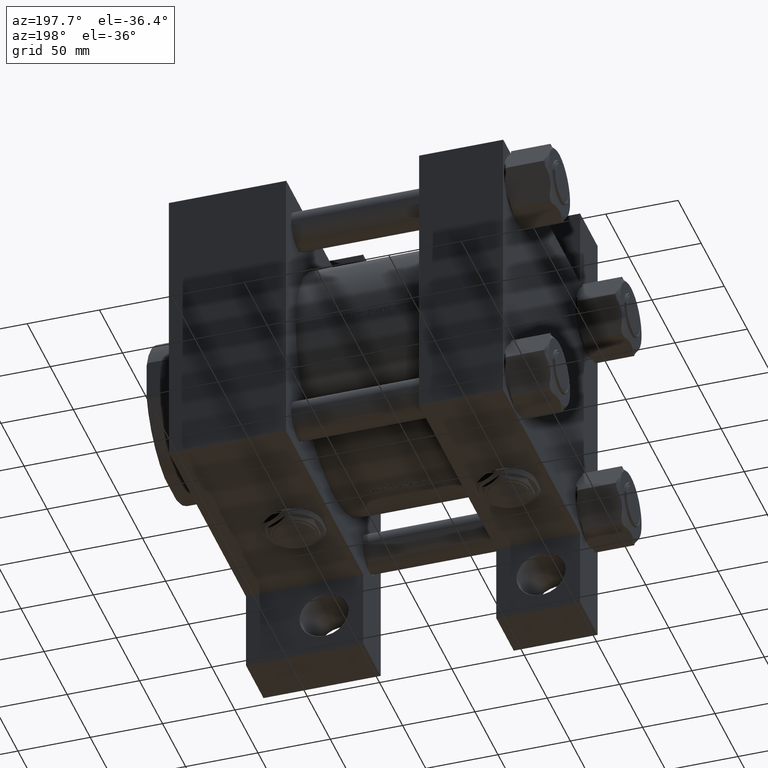
[diagram: clean part render]
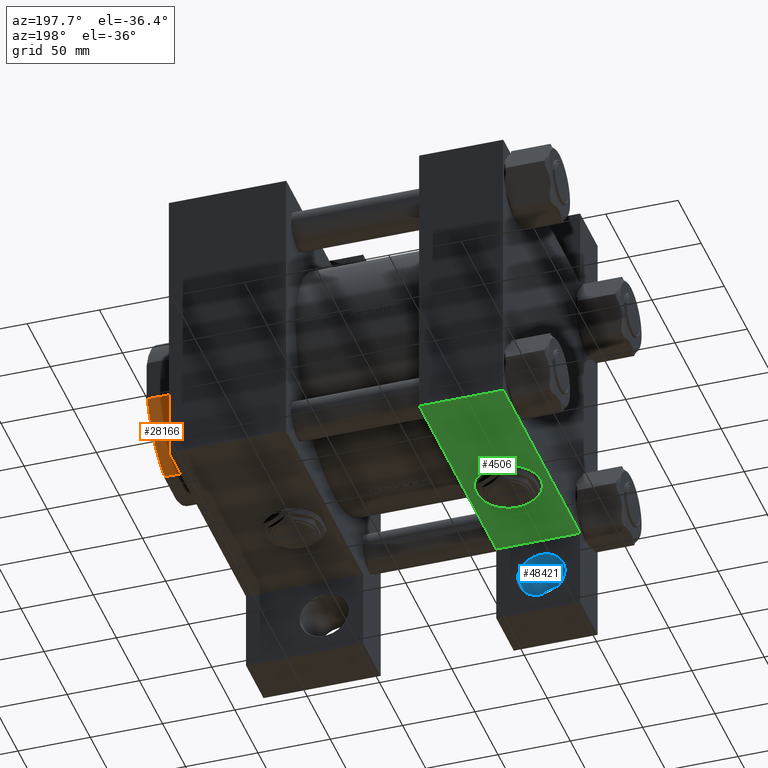
[diagram: same view with three faces highlighted in distinct colors, each labeled with its STEP entity id]
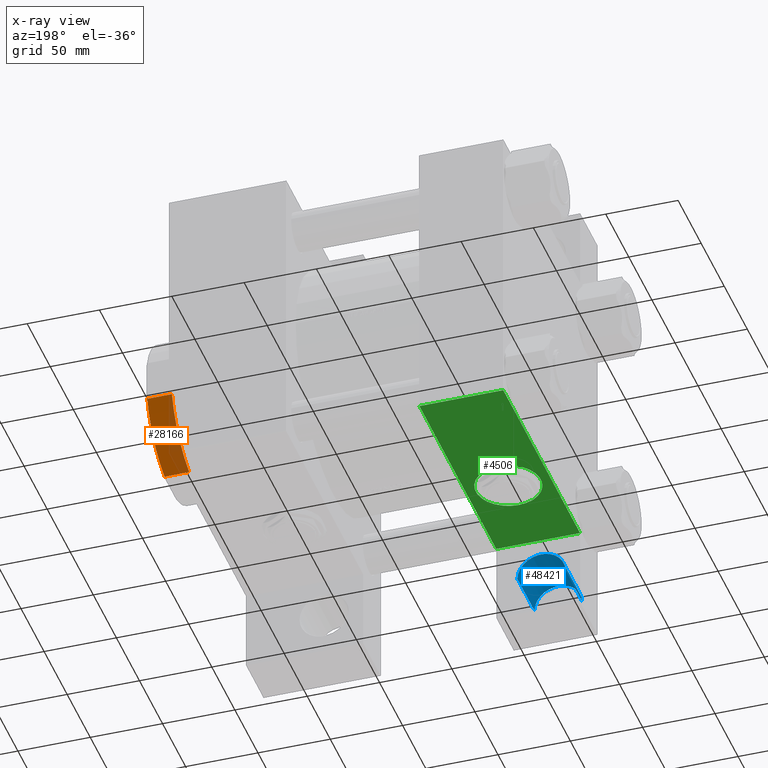
[diagram: x-ray of the same camera — body ghosted, the three highlighted faces saturated]
A machine part, auxiliary view with three faces highlighted in distinct colors.
The next image is the same camera in x-ray (body ghosted, the three faces saturated) — at least one of them is partly hidden behind the body in this view.
Their STEP definitions:

[orange] entity #28166 — the highlighted cylindrical surface (partial cylindrical patch) has radius 54 mm, axis along (1, 0, 0).
#1068 = FACE_OUTER_BOUND ( 'NONE', #41718, .T. ) ;
#3199 = LINE ( 'NONE', #15602, #40118 ) ;
#3729 = ORIENTED_EDGE ( 'NONE', *, *, #34948, .F. ) ;
#4624 = DIRECTION ( 'NONE',  ( -0.000000000000000000, -0.000000000000000000, 1.000000000000000000 ) ) ;
#5233 = CARTESIAN_POINT ( 'NONE',  ( 0.000000000000000000, 0.000000000000000000, 187.5000000000000000 ) ) ;
#8794 = VERTEX_POINT ( 'NONE', #12849 ) ;
#10292 = DIRECTION ( 'NONE',  ( -0.000000000000000000, -0.000000000000000000, -1.000000000000000000 ) ) ;
#12849 = CARTESIAN_POINT ( 'NONE',  ( -52.00000000000001421, 14.56021977856099170, 187.5000000000000000 ) ) ;
#14892 = VERTEX_POINT ( 'NONE', #29528 ) ;
#15602 = CARTESIAN_POINT ( 'NONE',  ( -14.56021977856099348, 52.00000000000001421, -0.001000000000001000089 ) ) ;
#16395 = DIRECTION ( 'NONE',  ( -1.000000000000000000, -1.776356839400250465E-15, 0.000000000000000000 ) ) ;
#16510 = CYLINDRICAL_SURFACE ( 'NONE', #44851, 54.00000000000000000 ) ;
#17615 = VERTEX_POINT ( 'NONE', #28942 ) ;
#18624 = LINE ( 'NONE', #45518, #28533 ) ;
#19092 = EDGE_CURVE ( 'NONE', #49597, #14892, #26081, .T. ) ;
#20517 = EDGE_CURVE ( 'NONE', #8794, #49597, #18624, .T. ) ;
#24573 = CIRCLE ( 'NONE', #39968, 54.00000000000000000 ) ;
#24599 = ORIENTED_EDGE ( 'NONE', *, *, #26569, .T. ) ;
#26081 = CIRCLE ( 'NONE', #47946, 54.00000000000000000 ) ;
#26569 = EDGE_CURVE ( 'NONE', #17615, #8794, #24573, .T. ) ;
#28166 = ADVANCED_FACE ( 'NONE', ( #1068 ), #16510, .T. ) ;
#28533 = VECTOR ( 'NONE', #45256, 1000.000000000000000 ) ;
#28942 = CARTESIAN_POINT ( 'NONE',  ( -14.56021977856098992, 52.00000000000001421, 187.5000000000000000 ) ) ;
#29528 = CARTESIAN_POINT ( 'NONE',  ( -14.56021977856099348, 52.00000000000001421, 204.4999999999998863 ) ) ;
#31382 = DIRECTION ( 'NONE',  ( -0.000000000000000000, -0.000000000000000000, 1.000000000000000000 ) ) ;
#33902 = DIRECTION ( 'NONE',  ( 1.000000000000000000, -8.881784197001252323E-16, 0.000000000000000000 ) ) ;
#34948 = EDGE_CURVE ( 'NONE', #17615, #14892, #3199, .T. ) ;
#35074 = CARTESIAN_POINT ( 'NONE',  ( 0.000000000000000000, 0.000000000000000000, -0.001000000000001000089 ) ) ;
#36439 = CARTESIAN_POINT ( 'NONE',  ( -52.00000000000001421, 14.56021977856099348, 204.4999999999998863 ) ) ;
#38926 = DIRECTION ( 'NONE',  ( -0.000000000000000000, -0.000000000000000000, 1.000000000000000000 ) ) ;
#39968 = AXIS2_PLACEMENT_3D ( 'NONE', #5233, #31382, #16395 ) ;
#40118 = VECTOR ( 'NONE', #38926, 1000.000000000000000 ) ;
#40999 = CARTESIAN_POINT ( 'NONE',  ( 0.000000000000000000, 0.000000000000000000, 204.4999999999999432 ) ) ;
#41718 = EDGE_LOOP ( 'NONE', ( #46091, #47823, #3729, #24599 ) ) ;
#44851 = AXIS2_PLACEMENT_3D ( 'NONE', #35074, #4624, #46491 ) ;
#45256 = DIRECTION ( 'NONE',  ( -0.000000000000000000, -0.000000000000000000, 1.000000000000000000 ) ) ;
#45518 = CARTESIAN_POINT ( 'NONE',  ( -52.00000000000001421, 14.56021977856099348, -0.001000000000001000089 ) ) ;
#46091 = ORIENTED_EDGE ( 'NONE', *, *, #20517, .T. ) ;
#46491 = DIRECTION ( 'NONE',  ( 1.000000000000000000, 0.000000000000000000, 0.000000000000000000 ) ) ;
#47823 = ORIENTED_EDGE ( 'NONE', *, *, #19092, .T. ) ;
#47946 = AXIS2_PLACEMENT_3D ( 'NONE', #40999, #10292, #33902 ) ;
#49597 = VERTEX_POINT ( 'NONE', #36439 ) ;

[blue] entity #48421 — the highlighted cylindrical surface (edge-blend (fillet) strip) has radius 16.4995 mm, axis along (0, 1, 0).
#345 = CARTESIAN_POINT ( 'NONE',  ( 10.50049999999998818, 129.9999999999999716, -149.1676333447497598 ) ) ;
#3825 = DIRECTION ( 'NONE',  ( -0.000000000000000000, -0.000000000000000000, -1.000000000000000000 ) ) ;
#4013 = AXIS2_PLACEMENT_3D ( 'NONE', #18521, #3825, #11424 ) ;
#4180 = EDGE_CURVE ( 'NONE', #8031, #5574, #23407, .T. ) ;
#4406 = CARTESIAN_POINT ( 'NONE',  ( 43.49949999999999761, 129.9999999999999716, -101.9999999999999574 ) ) ;
#5574 = VERTEX_POINT ( 'NONE', #17607 ) ;
#6864 = CARTESIAN_POINT ( 'NONE',  ( 26.99999999999999289, 129.9999999999999716, -149.1676333447497598 ) ) ;
#7365 = AXIS2_PLACEMENT_3D ( 'NONE', #47191, #20279, #46445 ) ;
#7833 = ORIENTED_EDGE ( 'NONE', *, *, #8304, .T. ) ;
#8031 = VERTEX_POINT ( 'NONE', #42376 ) ;
#8304 = EDGE_CURVE ( 'NONE', #5574, #36723, #36503, .T. ) ;
#9311 = ORIENTED_EDGE ( 'NONE', *, *, #12792, .T. ) ;
#10050 = DIRECTION ( 'NONE',  ( -0.000000000000000000, -0.000000000000000000, 1.000000000000000000 ) ) ;
#11235 = DIRECTION ( 'NONE',  ( -0.000000000000000000, -0.000000000000000000, 1.000000000000000000 ) ) ;
#11424 = DIRECTION ( 'NONE',  ( -1.000000000000000000, 0.000000000000000000, 0.000000000000000000 ) ) ;
#12792 = EDGE_CURVE ( 'NONE', #19616, #8031, #29920, .T. ) ;
#17607 = CARTESIAN_POINT ( 'NONE',  ( 10.50049999999998818, 129.9999999999999716, -65.00000000000014211 ) ) ;
#18170 = LINE ( 'NONE', #25293, #34486 ) ;
#18521 = CARTESIAN_POINT ( 'NONE',  ( 26.99999999999999289, 129.9999999999999716, -101.9999999999999574 ) ) ;
#18783 = FACE_OUTER_BOUND ( 'NONE', #19643, .T. ) ;
#19616 = VERTEX_POINT ( 'NONE', #4406 ) ;
#19643 = EDGE_LOOP ( 'NONE', ( #9311, #33158, #7833, #21485 ) ) ;
#20279 = DIRECTION ( 'NONE',  ( 0.000000000000000000, 0.000000000000000000, 1.000000000000000000 ) ) ;
#20779 = CARTESIAN_POINT ( 'NONE',  ( 43.49949999999999761, 129.9999999999999716, -65.00000000000014211 ) ) ;
#21485 = ORIENTED_EDGE ( 'NONE', *, *, #31261, .F. ) ;
#23407 = LINE ( 'NONE', #345, #38890 ) ;
#25293 = CARTESIAN_POINT ( 'NONE',  ( 43.49949999999999761, 129.9999999999999716, -149.1676333447497598 ) ) ;
#25885 = CYLINDRICAL_SURFACE ( 'NONE', #33982, 16.49950000000000472 ) ;
#29920 = CIRCLE ( 'NONE', #4013, 16.49950000000000472 ) ;
#31261 = EDGE_CURVE ( 'NONE', #19616, #36723, #18170, .T. ) ;
#33158 = ORIENTED_EDGE ( 'NONE', *, *, #4180, .T. ) ;
#33982 = AXIS2_PLACEMENT_3D ( 'NONE', #6864, #49226, #41356 ) ;
#34486 = VECTOR ( 'NONE', #10050, 1000.000000000000000 ) ;
#36503 = CIRCLE ( 'NONE', #7365, 16.49950000000000472 ) ;
#36723 = VERTEX_POINT ( 'NONE', #20779 ) ;
#38890 = VECTOR ( 'NONE', #11235, 1000.000000000000000 ) ;
#41356 = DIRECTION ( 'NONE',  ( 1.000000000000000000, 0.000000000000000000, 0.000000000000000000 ) ) ;
#42376 = CARTESIAN_POINT ( 'NONE',  ( 10.50049999999998818, 129.9999999999999716, -101.9999999999999574 ) ) ;
#46445 = DIRECTION ( 'NONE',  ( -1.000000000000000000, 0.000000000000000000, 0.000000000000000000 ) ) ;
#47191 = CARTESIAN_POINT ( 'NONE',  ( 26.99999999999999289, 129.9999999999999716, -65.00000000000014211 ) ) ;
#48421 = ADVANCED_FACE ( 'NONE', ( #18783 ), #25885, .F. ) ;
#49226 = DIRECTION ( 'NONE',  ( -0.000000000000000000, -0.000000000000000000, 1.000000000000000000 ) ) ;

[green] entity #4506 — the highlighted planar face has unit normal (0, 0, -1).
#2029 = ORIENTED_EDGE ( 'NONE', *, *, #25108, .F. ) ;
#4064 = EDGE_CURVE ( 'NONE', #25290, #36278, #22163, .T. ) ;
#4506 = ADVANCED_FACE ( 'NONE', ( #4510, #12369 ), #5747, .T. ) ;
#4510 = FACE_OUTER_BOUND ( 'NONE', #18030, .T. ) ;
#5163 = CARTESIAN_POINT ( 'NONE',  ( 29.00000000000000000, 102.5000000000000284, 0.000000000000000000 ) ) ;
#5747 = PLANE ( 'NONE',  #15476 ) ;
#6111 = CARTESIAN_POINT ( 'NONE',  ( 29.00000000000000000, 102.5000000000000284, 0.000000000000000000 ) ) ;
#6146 = CARTESIAN_POINT ( 'NONE',  ( 0.000000000000000000, 102.5000000000000284, 102.5000000000000284 ) ) ;
#7185 = DIRECTION ( 'NONE',  ( 1.000000000000000000, -2.392722035830078479E-16, 0.000000000000000000 ) ) ;
#7391 = ORIENTED_EDGE ( 'NONE', *, *, #28081, .T. ) ;
#8198 = CARTESIAN_POINT ( 'NONE',  ( 58.00000000000002842, 102.5000000000000000, -64.50000000000002842 ) ) ;
#9396 = DIRECTION ( 'NONE',  ( 0.000000000000000000, 0.000000000000000000, 1.000000000000000000 ) ) ;
#9434 = DIRECTION ( 'NONE',  ( 0.000000000000000000, 0.000000000000000000, -1.000000000000000000 ) ) ;
#10009 = VECTOR ( 'NONE', #15277, 1000.000000000000000 ) ;
#10839 = DIRECTION ( 'NONE',  ( 1.000000000000000000, 0.000000000000000000, 0.000000000000000000 ) ) ;
#11645 = EDGE_CURVE ( 'NONE', #48414, #24021, #38775, .T. ) ;
#12369 = FACE_BOUND ( 'NONE', #45355, .T. ) ;
#15277 = DIRECTION ( 'NONE',  ( 0.000000000000000000, 0.000000000000000000, -1.000000000000000000 ) ) ;
#15476 = AXIS2_PLACEMENT_3D ( 'NONE', #40746, #36932, #24764 ) ;
#17619 = CARTESIAN_POINT ( 'NONE',  ( 29.00000000000000355, 102.5000000000000284, -22.50000000000000711 ) ) ;
#18020 = CARTESIAN_POINT ( 'NONE',  ( 29.00000000000000000, 102.5000000000000284, 22.50000000000000711 ) ) ;
#18030 = EDGE_LOOP ( 'NONE', ( #38267, #2029, #44566, #7391 ) ) ;
#19087 = CARTESIAN_POINT ( 'NONE',  ( 58.00000000000000000, 102.5000000000000284, 102.5000000000000284 ) ) ;
#19711 = LINE ( 'NONE', #26565, #20884 ) ;
#20884 = VECTOR ( 'NONE', #10839, 1000.000000000000000 ) ;
#21909 = CARTESIAN_POINT ( 'NONE',  ( 2.265596578422603081E-14, 102.5000000000000142, -64.50000000000002842 ) ) ;
#22130 = VECTOR ( 'NONE', #9434, 1000.000000000000000 ) ;
#22147 = LINE ( 'NONE', #19087, #10009 ) ;
#22163 = LINE ( 'NONE', #21909, #32422 ) ;
#22580 = AXIS2_PLACEMENT_3D ( 'NONE', #6111, #44150, #9396 ) ;
#24021 = VERTEX_POINT ( 'NONE', #17619 ) ;
#24764 = DIRECTION ( 'NONE',  ( 0.000000000000000000, -0.000000000000000000, 1.000000000000000000 ) ) ;
#24815 = AXIS2_PLACEMENT_3D ( 'NONE', #5163, #40652, #32050 ) ;
#25108 = EDGE_CURVE ( 'NONE', #27308, #25290, #36333, .T. ) ;
#25290 = VERTEX_POINT ( 'NONE', #46971 ) ;
#25616 = CIRCLE ( 'NONE', #24815, 22.50000000000000711 ) ;
#26565 = CARTESIAN_POINT ( 'NONE',  ( 58.00000000000000000, 102.5000000000000284, 102.0000000000000142 ) ) ;
#27308 = VERTEX_POINT ( 'NONE', #35985 ) ;
#28081 = EDGE_CURVE ( 'NONE', #37321, #36278, #22147, .T. ) ;
#31067 = CARTESIAN_POINT ( 'NONE',  ( 58.00000000000000000, 102.5000000000000284, 102.0000000000000142 ) ) ;
#32050 = DIRECTION ( 'NONE',  ( 0.000000000000000000, 0.000000000000000000, 1.000000000000000000 ) ) ;
#32422 = VECTOR ( 'NONE', #7185, 1000.000000000000000 ) ;
#35985 = CARTESIAN_POINT ( 'NONE',  ( 0.000000000000000000, 102.5000000000000284, 102.0000000000000142 ) ) ;
#36278 = VERTEX_POINT ( 'NONE', #8198 ) ;
#36333 = LINE ( 'NONE', #6146, #22130 ) ;
#36932 = DIRECTION ( 'NONE',  ( -0.000000000000000000, 1.000000000000000000, 0.000000000000000000 ) ) ;
#37321 = VERTEX_POINT ( 'NONE', #31067 ) ;
#37436 = EDGE_CURVE ( 'NONE', #24021, #48414, #25616, .T. ) ;
#38267 = ORIENTED_EDGE ( 'NONE', *, *, #4064, .F. ) ;
#38775 = CIRCLE ( 'NONE', #22580, 22.50000000000000711 ) ;
#40285 = ORIENTED_EDGE ( 'NONE', *, *, #37436, .F. ) ;
#40652 = DIRECTION ( 'NONE',  ( 0.000000000000000000, 1.000000000000000000, 0.000000000000000000 ) ) ;
#40746 = CARTESIAN_POINT ( 'NONE',  ( 58.00000000000000000, 102.5000000000000284, 102.5000000000000284 ) ) ;
#44150 = DIRECTION ( 'NONE',  ( 0.000000000000000000, 1.000000000000000000, 0.000000000000000000 ) ) ;
#44566 = ORIENTED_EDGE ( 'NONE', *, *, #44640, .T. ) ;
#44640 = EDGE_CURVE ( 'NONE', #27308, #37321, #19711, .T. ) ;
#45355 = EDGE_LOOP ( 'NONE', ( #48392, #40285 ) ) ;
#46971 = CARTESIAN_POINT ( 'NONE',  ( 0.000000000000000000, 102.5000000000000284, -64.49999999999995737 ) ) ;
#48392 = ORIENTED_EDGE ( 'NONE', *, *, #11645, .F. ) ;
#48414 = VERTEX_POINT ( 'NONE', #18020 ) ;